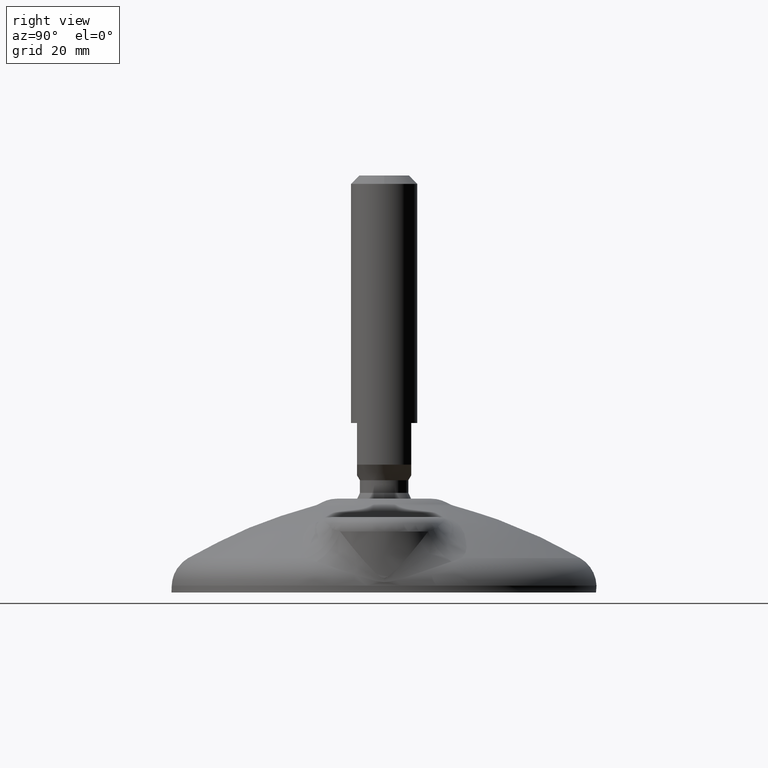
[diagram: clean part render]
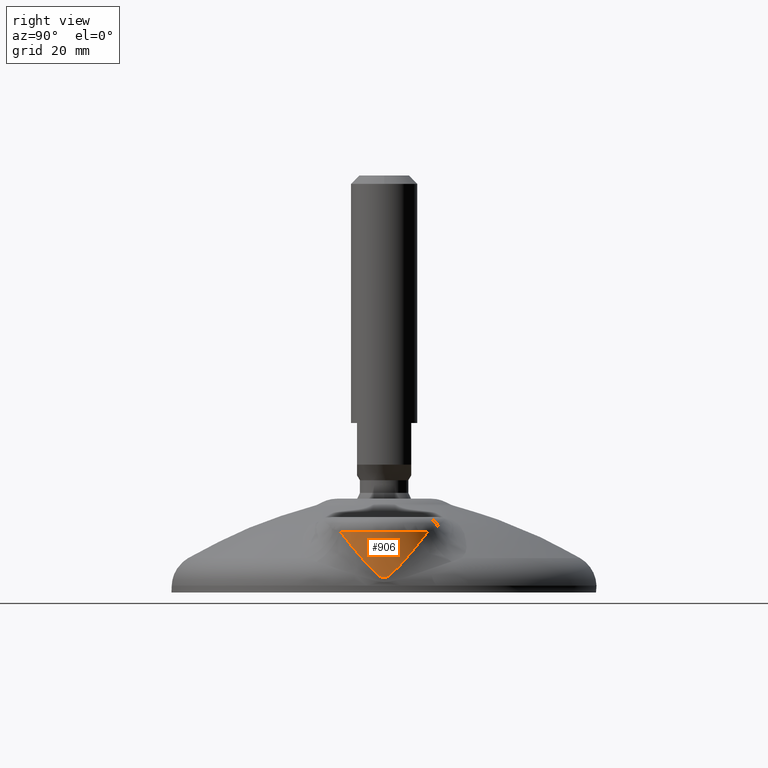
[diagram: same view with one face highlighted and labeled with its STEP entity id]
A machine part, right view. The second image highlights one B-rep face of the part: STEP entity #906.
In plain terms, the highlighted conical surface has half-angle 2 deg.
Its self-contained STEP definition (entity closure, byte-faithful):
#45=CONICAL_SURFACE('',#1016,14.0059946377,0.0349065850398866);
#77=B_SPLINE_CURVE_WITH_KNOTS('',3,(#3870,#3871,#3872,#3873,#3874,#3875,
#3876,#3877,#3878,#3879,#3880,#3881,#3882,#3883,#3884,#3885,#3886,#3887,
#3888,#3889,#3890,#3891,#3892,#3893,#3894,#3895,#3896,#3897,#3898,#3899,
#3900,#3901,#3902,#3903,#3904,#3905,#3906,#3907,#3908,#3909,#3910,#3911,
#3912,#3913,#3914,#3915,#3916,#3917,#3918,#3919,#3920,#3921,#3922,#3923,
#3924,#3925,#3926,#3927,#3928,#3929,#3930,#3931,#3932,#3933,#3934,#3935,
#3936,#3937,#3938,#3939,#3940,#3941,#3942,#3943,#3944,#3945,#3946,#3947,
#3948,#3949,#3950,#3951,#3952,#3953,#3954,#3955,#3956,#3957,#3958,#3959,
#3960,#3961,#3962,#3963,#3964,#3965,#3966,#3967,#3968,#3969,#3970,#3971,
#3972,#3973,#3974,#3975,#3976,#3977,#3978,#3979,#3980,#3981,#3982,#3983,
#3984,#3985,#3986,#3987,#3988,#3989,#3990,#3991,#3992,#3993,#3994,#3995,
#3996,#3997,#3998,#3999),.UNSPECIFIED.,.F.,.F.,(4,3,3,3,3,3,3,3,3,3,3,3,
3,3,3,3,3,3,3,3,3,3,3,3,3,3,3,3,3,3,3,3,3,3,3,3,3,3,3,3,3,3,3,4),(0.,0.0607977849149903,
0.121595569829981,0.125,0.15259114844097,0.18379743749732,0.1875,0.246592312845375,
0.249999999999999,0.332112251487098,0.373393482752956,0.375,0.461666135977466,
0.5,0.501690407190631,0.533980432296417,0.5625,0.56633593652697,0.625,0.63109356917108,
0.686802034588481,0.69580971035701,0.746765388934472,0.75,0.7603018303488,
0.793219768279921,0.8125,0.824228626860565,0.847172923514797,0.868323653025553,
0.875,0.88676343435583,0.901585864470985,0.90625,0.917003069758738,0.928434685344074,
0.9375,0.946034856751167,0.953125,0.961073755391401,0.96875,0.980765588560843,
0.992587337125214,1.),.UNSPECIFIED.);
#78=B_SPLINE_CURVE_WITH_KNOTS('',3,(#4000,#4001,#4002,#4003,#4004,#4005,
#4006,#4007,#4008,#4009,#4010,#4011,#4012,#4013,#4014,#4015,#4016,#4017,
#4018,#4019,#4020,#4021,#4022,#4023,#4024,#4025,#4026,#4027,#4028,#4029,
#4030,#4031,#4032,#4033,#4034,#4035,#4036,#4037,#4038,#4039,#4040,#4041,
#4042,#4043,#4044,#4045,#4046,#4047,#4048,#4049,#4050,#4051,#4052,#4053,
#4054,#4055,#4056,#4057,#4058,#4059,#4060,#4061,#4062,#4063,#4064,#4065,
#4066,#4067,#4068,#4069,#4070,#4071,#4072,#4073,#4074,#4075,#4076,#4077,
#4078,#4079,#4080,#4081,#4082,#4083,#4084,#4085,#4086,#4087,#4088,#4089,
#4090,#4091,#4092,#4093,#4094,#4095,#4096,#4097,#4098,#4099,#4100,#4101,
#4102,#4103,#4104,#4105,#4106,#4107,#4108,#4109,#4110,#4111,#4112,#4113,
#4114,#4115,#4116,#4117,#4118,#4119,#4120,#4121,#4122,#4123,#4124,#4125,
#4126),.UNSPECIFIED.,.F.,.F.,(4,3,3,3,3,3,3,3,3,3,3,3,3,3,3,3,3,3,3,3,3,
3,3,3,3,3,3,3,3,3,3,3,3,3,3,3,3,3,3,3,3,3,4),(0.,0.0123629255449171,0.024834853896552,
0.03125,0.0424265527700066,0.046875,0.053842951133424,0.0625,0.0741627363714584,
0.0828746348273961,0.09375,0.1085039055283,0.113110206800152,0.125,0.146016442164357,
0.168801136739807,0.175651338827207,0.1875,0.221205580197122,0.239560376193513,
0.25,0.297934175164537,0.304085236567028,0.3125,0.362960681104272,0.368900066898934,
0.375,0.451109053697305,0.49822897605424,0.5,0.586297763535299,0.625,0.626408346737135,
0.708370805243841,0.75,0.753219368699621,0.8125,0.81606480625142,0.847297709730618,
0.875,0.878316019432076,0.939158009716038,1.),.UNSPECIFIED.);
#157=FACE_OUTER_BOUND('',#223,.T.);
#223=EDGE_LOOP('',(#627,#628,#629));
#299=CIRCLE('',#1017,13.4953779695906);
#393=VERTEX_POINT('',#3866);
#394=VERTEX_POINT('',#3867);
#395=VERTEX_POINT('',#3869);
#484=EDGE_CURVE('',#393,#394,#299,.T.);
#485=EDGE_CURVE('',#394,#395,#77,.T.);
#486=EDGE_CURVE('',#395,#393,#78,.T.);
#627=ORIENTED_EDGE('',*,*,#484,.T.);
#628=ORIENTED_EDGE('',*,*,#485,.T.);
#629=ORIENTED_EDGE('',*,*,#486,.T.);
#906=ADVANCED_FACE('',(#157),#45,.T.);
#1016=AXIS2_PLACEMENT_3D('',#3865,#1177,#1178);
#1017=AXIS2_PLACEMENT_3D('',#3868,#1179,#1180);
#1177=DIRECTION('center_axis',(0.,0.,-1.));
#1178=DIRECTION('ref_axis',(1.,0.,0.));
#1179=DIRECTION('center_axis',(0.,0.,-1.));
#1180=DIRECTION('ref_axis',(-1.,0.,0.));
#3865=CARTESIAN_POINT('Origin',(36.9,-8.645326E-14,4.352074E-14));
#3866=CARTESIAN_POINT('',(45.316172805629,10.5495621638008,14.6221482384588));
#3867=CARTESIAN_POINT('',(45.3161728056289,-10.5495621638012,14.6221482384588));
#3868=CARTESIAN_POINT('Origin',(36.9,-8.645326E-14,14.6221482384588));
#3869=CARTESIAN_POINT('',(50.7831052585691,-1.426071E-13,3.51909138657364));
#3870=CARTESIAN_POINT('Ctrl Pts',(45.3161728056289,-10.5495621638012,14.6221482384588));
#3871=CARTESIAN_POINT('Ctrl Pts',(45.5266738129038,-10.3911987942194,14.4079422442315));
#3872=CARTESIAN_POINT('Ctrl Pts',(45.7301097752934,-10.2287882647314,14.1907172531776));
#3873=CARTESIAN_POINT('Ctrl Pts',(45.9269295673967,-10.0625454851961,13.9707121817628));
#3874=CARTESIAN_POINT('Ctrl Pts',(46.1237493595,-9.89630270566069,13.750707110348));
#3875=CARTESIAN_POINT('Ctrl Pts',(46.3139528407942,-9.72622757763781,13.5279217922828));
#3876=CARTESIAN_POINT('Ctrl Pts',(46.4979554434808,-9.55250554004484,13.3025613020264));
#3877=CARTESIAN_POINT('Ctrl Pts',(46.50825884537,-9.54277780824005,13.2899420256296));
#3878=CARTESIAN_POINT('Ctrl Pts',(46.5185427353206,-9.53303859170577,13.2773146156706));
#3879=CARTESIAN_POINT('Ctrl Pts',(46.5288071714124,-9.52328791065602,13.2646790942083));
#3880=CARTESIAN_POINT('Ctrl Pts',(46.6119951252628,-9.44426367611203,13.1622747178854));
#3881=CARTESIAN_POINT('Ctrl Pts',(46.6938602235376,-9.36453046229391,13.059394399014));
#3882=CARTESIAN_POINT('Ctrl Pts',(46.7745001093897,-9.2840346362812,12.9559664685135));
#3883=CARTESIAN_POINT('Ctrl Pts',(46.8657058666548,-9.19299181435022,12.838986854468));
#3884=CARTESIAN_POINT('Ctrl Pts',(46.9554610901746,-9.10084771120415,12.7211471595324));
#3885=CARTESIAN_POINT('Ctrl Pts',(47.0433943199419,-9.00804447608284,12.6030089647891));
#3886=CARTESIAN_POINT('Ctrl Pts',(47.0538274181769,-8.99703356165251,12.5889921091097));
#3887=CARTESIAN_POINT('Ctrl Pts',(47.0642353238445,-8.9860130256795,12.5749705861176));
#3888=CARTESIAN_POINT('Ctrl Pts',(47.074618297006,-8.97498272567236,12.5609442012302));
#3889=CARTESIAN_POINT('Ctrl Pts',(47.2403289090158,-8.79894087942989,12.3370853134329));
#3890=CARTESIAN_POINT('Ctrl Pts',(47.3998138661967,-8.62028122798799,12.1118223041733));
#3891=CARTESIAN_POINT('Ctrl Pts',(47.5534156799595,-8.4391183347429,11.8852580355037));
#3892=CARTESIAN_POINT('Ctrl Pts',(47.5622734636962,-8.42867118122191,11.8721927126069));
#3893=CARTESIAN_POINT('Ctrl Pts',(47.5711117216066,-8.41821572880613,11.8591230622848));
#3894=CARTESIAN_POINT('Ctrl Pts',(47.5799305012577,-8.40775198919453,11.8460490996881));
#3895=CARTESIAN_POINT('Ctrl Pts',(47.7924294249155,-8.15561581016831,11.5310165113174));
#3896=CARTESIAN_POINT('Ctrl Pts',(47.9936236948508,-7.89866804964402,11.2134810261394));
#3897=CARTESIAN_POINT('Ctrl Pts',(48.18414109089,-7.63707769758761,10.8936672628817));
#3898=CARTESIAN_POINT('Ctrl Pts',(48.2799220802506,-7.50556538822345,10.732883632133));
#3899=CARTESIAN_POINT('Ctrl Pts',(48.3730038128595,-7.37287933321725,10.571523822754));
#3900=CARTESIAN_POINT('Ctrl Pts',(48.4634620070915,-7.23903901967978,10.4096143588591));
#3901=CARTESIAN_POINT('Ctrl Pts',(48.4669823151035,-7.2338304354042,10.4033134240703));
#3902=CARTESIAN_POINT('Ctrl Pts',(48.4704986479542,-7.22862010519586,10.3970116482328));
#3903=CARTESIAN_POINT('Ctrl Pts',(48.4740110082227,-7.22340802875124,10.3907090334036));
#3904=CARTESIAN_POINT('Ctrl Pts',(48.6634908866302,-6.94223424944301,10.050704421062));
#3905=CARTESIAN_POINT('Ctrl Pts',(48.8414088510416,-6.65598623247055,9.70826685237035));
#3906=CARTESIAN_POINT('Ctrl Pts',(49.0081607077112,-6.36459306159531,9.36368603250613));
#3907=CARTESIAN_POINT('Ctrl Pts',(49.0819178093402,-6.23570504710795,9.21127224199304));
#3908=CARTESIAN_POINT('Ctrl Pts',(49.1534897939861,-6.1058101872666,9.05843876195313));
#3909=CARTESIAN_POINT('Ctrl Pts',(49.2229083938088,-5.97490125232664,8.90520895419933));
#3910=CARTESIAN_POINT('Ctrl Pts',(49.2259695436119,-5.9691285651587,8.89845198420816));
#3911=CARTESIAN_POINT('Ctrl Pts',(49.2290264755922,-5.96335396287111,8.89169431145919));
#3912=CARTESIAN_POINT('Ctrl Pts',(49.2320791957991,-5.957577438957,8.88493593089343));
#3913=CARTESIAN_POINT('Ctrl Pts',(49.2903920169155,-5.84723473381191,8.75583787726921));
#3914=CARTESIAN_POINT('Ctrl Pts',(49.347164313399,-5.73618678685558,8.62648563440873));
#3915=CARTESIAN_POINT('Ctrl Pts',(49.4024273041572,-5.62437670387026,8.49685433460819));
#3916=CARTESIAN_POINT('Ctrl Pts',(49.4512373190539,-5.52562251519446,8.3823598856552));
#3917=CARTESIAN_POINT('Ctrl Pts',(49.4988998584008,-5.42620530099922,8.26756942435099));
#3918=CARTESIAN_POINT('Ctrl Pts',(49.5452930729769,-5.32638788277363,8.15282284670932));
#3919=CARTESIAN_POINT('Ctrl Pts',(49.5515330492712,-5.31296224867641,8.13738921205205));
#3920=CARTESIAN_POINT('Ctrl Pts',(49.5577504262714,-5.29952857860211,8.12195546539641));
#3921=CARTESIAN_POINT('Ctrl Pts',(49.5639448675995,-5.2860875672674,8.10652250143842));
#3922=CARTESIAN_POINT('Ctrl Pts',(49.6586782128196,-5.08053037503091,7.87050181370209));
#3923=CARTESIAN_POINT('Ctrl Pts',(49.7481545309294,-4.87307576338036,7.634428470109));
#3924=CARTESIAN_POINT('Ctrl Pts',(49.8324692893015,-4.66353771546605,7.39858434936638));
#3925=CARTESIAN_POINT('Ctrl Pts',(49.8412272542611,-4.64177252373967,7.3740866862613));
#3926=CARTESIAN_POINT('Ctrl Pts',(49.8499293288889,-4.61998530748841,7.34959207761378));
#3927=CARTESIAN_POINT('Ctrl Pts',(49.858575710908,-4.5981756203235,7.32510057073165));
#3928=CARTESIAN_POINT('Ctrl Pts',(49.9376224338019,-4.39878768050049,7.10119497027685));
#3929=CARTESIAN_POINT('Ctrl Pts',(50.0120187181838,-4.19752911945079,6.87753255518168));
#3930=CARTESIAN_POINT('Ctrl Pts',(50.0818445516499,-3.99393507581277,6.65441961177382));
#3931=CARTESIAN_POINT('Ctrl Pts',(50.0931349087512,-3.96101531900822,6.61834378310178));
#3932=CARTESIAN_POINT('Ctrl Pts',(50.1043056762903,-3.92803445478275,6.58228234659921));
#3933=CARTESIAN_POINT('Ctrl Pts',(50.1153570804956,-3.89499046143841,6.54623663331845));
#3934=CARTESIAN_POINT('Ctrl Pts',(50.1778739622066,-3.70806331762924,6.34232900750818));
#3935=CARTESIAN_POINT('Ctrl Pts',(50.2365754752488,-3.51913019176644,6.13888991519));
#3936=CARTESIAN_POINT('Ctrl Pts',(50.2914362618672,-3.32763057309175,5.93663023285263));
#3937=CARTESIAN_POINT('Ctrl Pts',(50.2949187649446,-3.31547438554009,5.92379100816044));
#3938=CARTESIAN_POINT('Ctrl Pts',(50.2983857803503,-3.30330784777222,5.91095654701013));
#3939=CARTESIAN_POINT('Ctrl Pts',(50.3018372970272,-3.29113081289643,5.89812703603414));
#3940=CARTESIAN_POINT('Ctrl Pts',(50.3128299445299,-3.25234848485125,5.85726665348575));
#3941=CARTESIAN_POINT('Ctrl Pts',(50.3236659103615,-3.2134577660965,5.81645528571401));
#3942=CARTESIAN_POINT('Ctrl Pts',(50.3343456500066,-3.17445050241099,5.77569518695595));
#3943=CARTESIAN_POINT('Ctrl Pts',(50.3684711398328,-3.04980870174183,5.64545246740462));
#3944=CARTESIAN_POINT('Ctrl Pts',(50.4010025678439,-2.92397115391756,5.5156814716411));
#3945=CARTESIAN_POINT('Ctrl Pts',(50.4318831994813,-2.796762226886,5.38698465770604));
#3946=CARTESIAN_POINT('Ctrl Pts',(50.4499701688072,-2.72225520292954,5.31160616955481));
#3947=CARTESIAN_POINT('Ctrl Pts',(50.4674904627797,-2.64727750914545,5.23659684439357));
#3948=CARTESIAN_POINT('Ctrl Pts',(50.4844293288956,-2.57179200140663,5.16208538928514));
#3949=CARTESIAN_POINT('Ctrl Pts',(50.494733646966,-2.52587235860862,5.11675828603801));
#3950=CARTESIAN_POINT('Ctrl Pts',(50.5048230973475,-2.47976287733209,5.07161711797331));
#3951=CARTESIAN_POINT('Ctrl Pts',(50.5146962169199,-2.43344319790899,5.02668016008204));
#3952=CARTESIAN_POINT('Ctrl Pts',(50.5340106504904,-2.34282965224441,4.93877158349814));
#3953=CARTESIAN_POINT('Ctrl Pts',(50.552514395057,-2.25138949088116,4.8515362747778));
#3954=CARTESIAN_POINT('Ctrl Pts',(50.5701851392231,-2.15880163090262,4.76537694726528));
#3955=CARTESIAN_POINT('Ctrl Pts',(50.5864745524809,-2.07345141024007,4.68595273747109));
#3956=CARTESIAN_POINT('Ctrl Pts',(50.6020560271628,-1.98712599003472,4.60744253344926));
#3957=CARTESIAN_POINT('Ctrl Pts',(50.6169016599904,-1.89955887540735,4.53020313709202));
#3958=CARTESIAN_POINT('Ctrl Pts',(50.6215877676616,-1.87191782215167,4.50582208631476));
#3959=CARTESIAN_POINT('Ctrl Pts',(50.6262004785534,-1.84415292437694,4.48156800524286));
#3960=CARTESIAN_POINT('Ctrl Pts',(50.6307386924124,-1.81625543590199,4.45745314669176));
#3961=CARTESIAN_POINT('Ctrl Pts',(50.6387348287767,-1.7671012688667,4.41496380983557));
#3962=CARTESIAN_POINT('Ctrl Pts',(50.6465001614257,-1.71753270031739,4.372909137809));
#3963=CARTESIAN_POINT('Ctrl Pts',(50.6540324702853,-1.66746670436538,4.33133104428625));
#3964=CARTESIAN_POINT('Ctrl Pts',(50.663523501416,-1.60438140939993,4.27894086919618));
#3965=CARTESIAN_POINT('Ctrl Pts',(50.6726430805577,-1.54049797544198,4.22733446855228));
#3966=CARTESIAN_POINT('Ctrl Pts',(50.6813682050036,-1.47558475109363,4.17680159076356));
#3967=CARTESIAN_POINT('Ctrl Pts',(50.6841137172177,-1.45515867563677,4.16090054155323));
#3968=CARTESIAN_POINT('Ctrl Pts',(50.6868201126264,-1.43463051387195,4.14510613822618));
#3969=CARTESIAN_POINT('Ctrl Pts',(50.6894865047709,-1.4139926928648,4.12942844216418));
#3970=CARTESIAN_POINT('Ctrl Pts',(50.6956338177201,-1.3664126155755,4.09328383222258));
#3971=CARTESIAN_POINT('Ctrl Pts',(50.7015695297023,-1.31824374442212,4.05775526429629));
#3972=CARTESIAN_POINT('Ctrl Pts',(50.7072834457053,-1.26936316238054,4.02296251939937));
#3973=CARTESIAN_POINT('Ctrl Pts',(50.7133579242217,-1.21739809230995,3.9859742645341));
#3974=CARTESIAN_POINT('Ctrl Pts',(50.7191613229161,-1.16479371188949,3.94993990184662));
#3975=CARTESIAN_POINT('Ctrl Pts',(50.7246694760426,-1.11144276787088,3.91514852557845));
#3976=CARTESIAN_POINT('Ctrl Pts',(50.7290374624301,-1.06913526626631,3.88755883181825));
#3977=CARTESIAN_POINT('Ctrl Pts',(50.7332196797682,-1.02635821018222,3.86075147175905));
#3978=CARTESIAN_POINT('Ctrl Pts',(50.7372011666727,-0.98305600537202,3.83489383247782));
#3979=CARTESIAN_POINT('Ctrl Pts',(50.740949676424,-0.942287633937375,3.8105492558619));
#3980=CARTESIAN_POINT('Ctrl Pts',(50.7445221264844,-0.901034766644524,3.78703434380394));
#3981=CARTESIAN_POINT('Ctrl Pts',(50.7479054716289,-0.859216973640108,3.7644926040955));
#3982=CARTESIAN_POINT('Ctrl Pts',(50.7507161106864,-0.824477768121418,3.7457665530005));
#3983=CARTESIAN_POINT('Ctrl Pts',(50.7533985243558,-0.789339962902316,3.72772039057156));
#3984=CARTESIAN_POINT('Ctrl Pts',(50.7559412175149,-0.753746196606631,3.71046561420942));
#3985=CARTESIAN_POINT('Ctrl Pts',(50.7587918293077,-0.713842046321703,3.6911212946629));
#3986=CARTESIAN_POINT('Ctrl Pts',(50.761476609224,-0.673218023480668,3.67269873296083));
#3987=CARTESIAN_POINT('Ctrl Pts',(50.7639563879785,-0.632076676194595,3.65552669444872));
#3988=CARTESIAN_POINT('Ctrl Pts',(50.7663511513544,-0.592345796359389,3.63894337271387));
#3989=CARTESIAN_POINT('Ctrl Pts',(50.7685546842283,-0.552132352263206,3.62352705001588));
#3990=CARTESIAN_POINT('Ctrl Pts',(50.7705397131243,-0.511626377502486,3.60952889643887));
#3991=CARTESIAN_POINT('Ctrl Pts',(50.7736468692549,-0.448222571110562,3.58761765434473));
#3992=CARTESIAN_POINT('Ctrl Pts',(50.7762201881297,-0.384078029276148,3.56921015468108));
#3993=CARTESIAN_POINT('Ctrl Pts',(50.7782126686274,-0.319089269672306,3.55482973940909));
#3994=CARTESIAN_POINT('Ctrl Pts',(50.7801730056799,-0.255148933195511,3.54068131440803));
#3995=CARTESIAN_POINT('Ctrl Pts',(50.7815711549968,-0.190391457152775,3.53043104426696));
#3996=CARTESIAN_POINT('Ctrl Pts',(50.7823583511679,-0.124701801098638,3.52462472873728));
#3997=CARTESIAN_POINT('Ctrl Pts',(50.782851951569,-0.083512016690813,3.52098395941015));
#3998=CARTESIAN_POINT('Ctrl Pts',(50.7831052585691,-0.0419553935721399,
3.51909138657368));
#3999=CARTESIAN_POINT('Ctrl Pts',(50.7831052585691,-1.45106149318508E-13,
3.51909138657363));
#4000=CARTESIAN_POINT('Ctrl Pts',(50.783105258569,-1.426071E-13,3.51909138657399));
#4001=CARTESIAN_POINT('Ctrl Pts',(50.783105258569,0.0704985178682372,3.519091386574));
#4002=CARTESIAN_POINT('Ctrl Pts',(50.7823902862034,0.139951696156302,3.52443391523759));
#4003=CARTESIAN_POINT('Ctrl Pts',(50.7810166886075,0.208492122981574,3.53447449240901));
#4004=CARTESIAN_POINT('Ctrl Pts',(50.7796309801246,0.277636864608424,3.54460359644965));
#4005=CARTESIAN_POINT('Ctrl Pts',(50.7775749007844,0.345852593988757,3.55951393053162));
#4006=CARTESIAN_POINT('Ctrl Pts',(50.7749017728893,0.413255249873686,3.57859290977921));
#4007=CARTESIAN_POINT('Ctrl Pts',(50.7735268045992,0.447924939521604,3.58840650362991));
#4008=CARTESIAN_POINT('Ctrl Pts',(50.7719885162283,0.482379194745696,3.59932380603668));
#4009=CARTESIAN_POINT('Ctrl Pts',(50.7702938085373,0.516631860154419,3.61126642805197));
#4010=CARTESIAN_POINT('Ctrl Pts',(50.7673412662829,0.576307308894114,3.63207302279101));
#4011=CARTESIAN_POINT('Ctrl Pts',(50.763935225467,0.634949031336813,3.65580340786288));
#4012=CARTESIAN_POINT('Ctrl Pts',(50.7601565949107,0.692343403409428,3.68171465640458));
#4013=CARTESIAN_POINT('Ctrl Pts',(50.7586526393551,0.715187283872177,3.69202774883772));
#4014=CARTESIAN_POINT('Ctrl Pts',(50.7570898063691,0.737833713905917,3.7026856873236));
#4015=CARTESIAN_POINT('Ctrl Pts',(50.7554737222098,0.760269729552161,3.71363968526305));
#4016=CARTESIAN_POINT('Ctrl Pts',(50.7529423230793,0.795413017213908,3.73079778974569));
#4017=CARTESIAN_POINT('Ctrl Pts',(50.7502743758537,0.830122190257093,3.74872680532743));
#4018=CARTESIAN_POINT('Ctrl Pts',(50.7474809483702,0.864449089825229,3.76731909619245));
#4019=CARTESIAN_POINT('Ctrl Pts',(50.7440103674538,0.90709715685514,3.79041833547787));
#4020=CARTESIAN_POINT('Ctrl Pts',(50.740341103788,0.949181242297288,3.81453816550632));
#4021=CARTESIAN_POINT('Ctrl Pts',(50.7364887485833,0.990767414183252,3.83951568341232));
#4022=CARTESIAN_POINT('Ctrl Pts',(50.7312988733899,1.04679211346348,3.8731652805257));
#4023=CARTESIAN_POINT('Ctrl Pts',(50.7257702216982,1.10198231836108,3.9084131421051));
#4024=CARTESIAN_POINT('Ctrl Pts',(50.7199387569892,1.1564043305424,3.94487558403316));
#4025=CARTESIAN_POINT('Ctrl Pts',(50.7155827356597,1.19705680083674,3.97211251037836));
#4026=CARTESIAN_POINT('Ctrl Pts',(50.711057604265,1.23728060937195,4.00002845847653));
#4027=CARTESIAN_POINT('Ctrl Pts',(50.7063761379506,1.27710289821961,4.02848215309899));
#4028=CARTESIAN_POINT('Ctrl Pts',(50.7005321010888,1.3268144433458,4.06400188752818));
#4029=CARTESIAN_POINT('Ctrl Pts',(50.6944636201217,1.37575497088215,4.10024594556008));
#4030=CARTESIAN_POINT('Ctrl Pts',(50.6881841965188,1.42404033778323,4.1370765379449));
#4031=CARTESIAN_POINT('Ctrl Pts',(50.6796653080824,1.48954597647687,4.18704222387569));
#4032=CARTESIAN_POINT('Ctrl Pts',(50.6707531105025,1.55388819382979,4.2381142191941));
#4033=CARTESIAN_POINT('Ctrl Pts',(50.6614733831037,1.61731835374531,4.28999537354279));
#4034=CARTESIAN_POINT('Ctrl Pts',(50.6585761692076,1.63712181702032,4.30619313398006));
#4035=CARTESIAN_POINT('Ctrl Pts',(50.655643069239,1.65683623885361,4.32247012964187));
#4036=CARTESIAN_POINT('Ctrl Pts',(50.6526747061021,1.67646891304787,4.3388182404343));
#4037=CARTESIAN_POINT('Ctrl Pts',(50.6450127617879,1.72714480729653,4.38101601367114));
#4038=CARTESIAN_POINT('Ctrl Pts',(50.6371172023765,1.77728269907494,4.42366838721817));
#4039=CARTESIAN_POINT('Ctrl Pts',(50.6289902460968,1.82697301391136,4.4667356748632));
#4040=CARTESIAN_POINT('Ctrl Pts',(50.6146250083038,1.91480579706705,4.54286157081058));
#4041=CARTESIAN_POINT('Ctrl Pts',(50.5995366451618,2.00124689519225,4.62026971529423));
#4042=CARTESIAN_POINT('Ctrl Pts',(50.5837554946877,2.08658520976789,4.69861328461557));
#4043=CARTESIAN_POINT('Ctrl Pts',(50.5666465715507,2.17910360170042,4.78354841706938));
#4044=CARTESIAN_POINT('Ctrl Pts',(50.5487234722043,2.27032573367686,4.86958339588507));
#4045=CARTESIAN_POINT('Ctrl Pts',(50.5300108174808,2.36059706695157,4.95633197345495));
#4046=CARTESIAN_POINT('Ctrl Pts',(50.5243848712552,2.38773707857573,4.98241287110228));
#4047=CARTESIAN_POINT('Ctrl Pts',(50.5186874623515,2.41479100957115,5.00855860100985));
#4048=CARTESIAN_POINT('Ctrl Pts',(50.5129190212606,2.44176791921914,5.03475944137244));
#4049=CARTESIAN_POINT('Ctrl Pts',(50.502941461021,2.48842935457973,5.08007852480061));
#4050=CARTESIAN_POINT('Ctrl Pts',(50.4927503549831,2.53485480415075,5.12557867672811));
#4051=CARTESIAN_POINT('Ctrl Pts',(50.4823444237606,2.5810760436023,5.17125286672717));
#4052=CARTESIAN_POINT('Ctrl Pts',(50.4527429401643,2.71256040883354,5.30118105451998));
#4053=CARTESIAN_POINT('Ctrl Pts',(50.4214179522445,2.8423375356587,5.43242879352487));
#4054=CARTESIAN_POINT('Ctrl Pts',(50.3883946310276,2.9708117848671,5.56454268400054));
#4055=CARTESIAN_POINT('Ctrl Pts',(50.370411367707,3.04077404693821,5.63648695832511));
#4056=CARTESIAN_POINT('Ctrl Pts',(50.3519240968577,3.11034953201891,5.70868896383901));
#4057=CARTESIAN_POINT('Ctrl Pts',(50.332934318123,3.17960099364599,5.78108064853843));
#4058=CARTESIAN_POINT('Ctrl Pts',(50.3221335363438,3.21898902103557,5.82225473487142));
#4059=CARTESIAN_POINT('Ctrl Pts',(50.3111699498522,3.25827091487925,5.86349399172216));
#4060=CARTESIAN_POINT('Ctrl Pts',(50.3000428586489,3.29745466960976,5.90479592595393));
#4061=CARTESIAN_POINT('Ctrl Pts',(50.2489521346254,3.47736929083294,6.09443629871044));
#4062=CARTESIAN_POINT('Ctrl Pts',(50.1944227493696,3.6551980010146,6.28534956677437));
#4063=CARTESIAN_POINT('Ctrl Pts',(50.1364517036268,3.83139956013108,6.47697359579494));
#4064=CARTESIAN_POINT('Ctrl Pts',(50.1290126799927,3.85401028839792,6.50156338303239));
#4065=CARTESIAN_POINT('Ctrl Pts',(50.1215169427593,3.8765941934665,6.52616492306933));
#4066=CARTESIAN_POINT('Ctrl Pts',(50.1139644500499,3.89915221997738,6.55077706834646));
#4067=CARTESIAN_POINT('Ctrl Pts',(50.1036325032003,3.93001200891183,6.58444692896613));
#4068=CARTESIAN_POINT('Ctrl Pts',(50.0931935076736,3.96082507129392,6.61813972583314));
#4069=CARTESIAN_POINT('Ctrl Pts',(50.0826474319054,3.99159229687183,6.6518536714028));
#4070=CARTESIAN_POINT('Ctrl Pts',(50.0194059432434,4.17609364034002,6.85402556485036));
#4071=CARTESIAN_POINT('Ctrl Pts',(49.9523237080218,4.35893195728868,7.05691918940743));
#4072=CARTESIAN_POINT('Ctrl Pts',(49.881353881246,4.54033889737312,7.26021144713746));
#4073=CARTESIAN_POINT('Ctrl Pts',(49.8730005025009,4.56169108246876,7.28413960508743));
#4074=CARTESIAN_POINT('Ctrl Pts',(49.8645932146725,4.58302341569875,7.30807330814842));
#4075=CARTESIAN_POINT('Ctrl Pts',(49.8561319014035,4.60433625754385,7.33201204507344));
#4076=CARTESIAN_POINT('Ctrl Pts',(49.8474418707045,4.6262252059879,7.3565978690652));
#4077=CARTESIAN_POINT('Ctrl Pts',(49.8386995706123,4.64808240719581,7.38117584607471));
#4078=CARTESIAN_POINT('Ctrl Pts',(49.82990486017,4.66990845860169,7.40574622525917));
#4079=CARTESIAN_POINT('Ctrl Pts',(49.7201729863577,4.94223277608639,7.71231160519519));
#4080=CARTESIAN_POINT('Ctrl Pts',(49.6021209102508,5.21012106544328,8.01812491032083));
#4081=CARTESIAN_POINT('Ctrl Pts',(49.4756522955055,5.47398453569486,8.32278701735258));
#4082=CARTESIAN_POINT('Ctrl Pts',(49.39735423479,5.63734520866465,8.51140655906348));
#4083=CARTESIAN_POINT('Ctrl Pts',(49.3158292923459,5.79916275469198,8.69958447394982));
#4084=CARTESIAN_POINT('Ctrl Pts',(49.2310465293393,5.95953116575532,8.88722128875282));
#4085=CARTESIAN_POINT('Ctrl Pts',(49.2278599302117,5.96555868621652,8.89427370470557));
#4086=CARTESIAN_POINT('Ctrl Pts',(49.2246687274095,5.97158414650065,8.90132538721065));
#4087=CARTESIAN_POINT('Ctrl Pts',(49.2214729168641,5.97760754836222,8.90837633541046));
#4088=CARTESIAN_POINT('Ctrl Pts',(49.0657487080474,6.27111352312497,9.2519521870546));
#4089=CARTESIAN_POINT('Ctrl Pts',(48.8990974911063,6.55971472610202,9.59376190617907));
#4090=CARTESIAN_POINT('Ctrl Pts',(48.7211018588287,6.84347421027034,9.93353229605947));
#4091=CARTESIAN_POINT('Ctrl Pts',(48.6412755832928,6.9707327417257,10.0859102191267));
#4092=CARTESIAN_POINT('Ctrl Pts',(48.5591670673019,7.09701722975248,10.2378776526867));
#4093=CARTESIAN_POINT('Ctrl Pts',(48.4747358912153,7.22233221059435,10.3894082958046));
#4094=CARTESIAN_POINT('Ctrl Pts',(48.4716635010328,7.2268923332256,10.3949223876583));
#4095=CARTESIAN_POINT('Ctrl Pts',(48.4685880361035,7.23145117037819,10.4004358993333));
#4096=CARTESIAN_POINT('Ctrl Pts',(48.4655094944912,7.2360087221839,10.4059488294476));
#4097=CARTESIAN_POINT('Ctrl Pts',(48.2863456334113,7.50124748826165,10.7267883598175));
#4098=CARTESIAN_POINT('Ctrl Pts',(48.0967698323098,7.76212916003716,11.0456813129677));
#4099=CARTESIAN_POINT('Ctrl Pts',(47.8961304967911,8.0184881378821,11.3624185019191));
#4100=CARTESIAN_POINT('Ctrl Pts',(47.7942246471347,8.14869430800721,11.5232911058601));
#4101=CARTESIAN_POINT('Ctrl Pts',(47.6894640765668,8.27773345042159,11.6836072912575));
#4102=CARTESIAN_POINT('Ctrl Pts',(47.5817590461826,8.40558185036785,11.843337705886));
#4103=CARTESIAN_POINT('Ctrl Pts',(47.5734297425379,8.4154689293636,11.8556903612819));
#4104=CARTESIAN_POINT('Ctrl Pts',(47.565082825484,8.4253488890737,11.8680395141545));
#4105=CARTESIAN_POINT('Ctrl Pts',(47.5567182519283,8.43522171909626,11.8803851519357));
#4106=CARTESIAN_POINT('Ctrl Pts',(47.402695135224,8.61701748437413,12.1077145664135));
#4107=CARTESIAN_POINT('Ctrl Pts',(47.2426730268093,8.79638821937199,12.3338522900154));
#4108=CARTESIAN_POINT('Ctrl Pts',(47.0762815563628,8.97321544893187,12.5586969536083));
#4109=CARTESIAN_POINT('Ctrl Pts',(47.0662757021568,8.98384885143668,12.5722178565541));
#4110=CARTESIAN_POINT('Ctrl Pts',(47.0562460116105,8.99447390259556,12.585735157799));
#4111=CARTESIAN_POINT('Ctrl Pts',(47.0461922566847,9.00509071220781,12.5992490116492));
#4112=CARTESIAN_POINT('Ctrl Pts',(46.9581066960522,9.09810945333694,12.7176500868177));
#4113=CARTESIAN_POINT('Ctrl Pts',(46.8682166969065,9.19044069782749,12.8357187067251));
#4114=CARTESIAN_POINT('Ctrl Pts',(46.7768741844926,9.2816642280664,12.9529208901025));
#4115=CARTESIAN_POINT('Ctrl Pts',(46.6958571636283,9.36257571667517,13.0568743668034));
#4116=CARTESIAN_POINT('Ctrl Pts',(46.6135976371155,9.44272228096146,13.1602815863091));
#4117=CARTESIAN_POINT('Ctrl Pts',(46.5300035187993,9.52215130552659,13.2632062443346));
#4118=CARTESIAN_POINT('Ctrl Pts',(46.5199971360039,9.53165911828747,13.2755265313121));
#4119=CARTESIAN_POINT('Ctrl Pts',(46.5099722467282,9.54115604789629,13.2878391269825));
#4120=CARTESIAN_POINT('Ctrl Pts',(46.4999287969753,9.55064207559507,13.3001440109209));
#4121=CARTESIAN_POINT('Ctrl Pts',(46.3156525932919,9.72469075561791,13.5259127810859));
#4122=CARTESIAN_POINT('Ctrl Pts',(46.1251502273285,9.89508531397737,13.7491043772765));
#4123=CARTESIAN_POINT('Ctrl Pts',(45.9280027725935,10.0616391161482,13.9695127126869));
#4124=CARTESIAN_POINT('Ctrl Pts',(45.7308553178584,10.228192918319,14.1899210480972));
#4125=CARTESIAN_POINT('Ctrl Pts',(45.5270629173839,10.3909060645193,14.4075462912055));
#4126=CARTESIAN_POINT('Ctrl Pts',(45.316172805629,10.5495621638008,14.6221482384588));